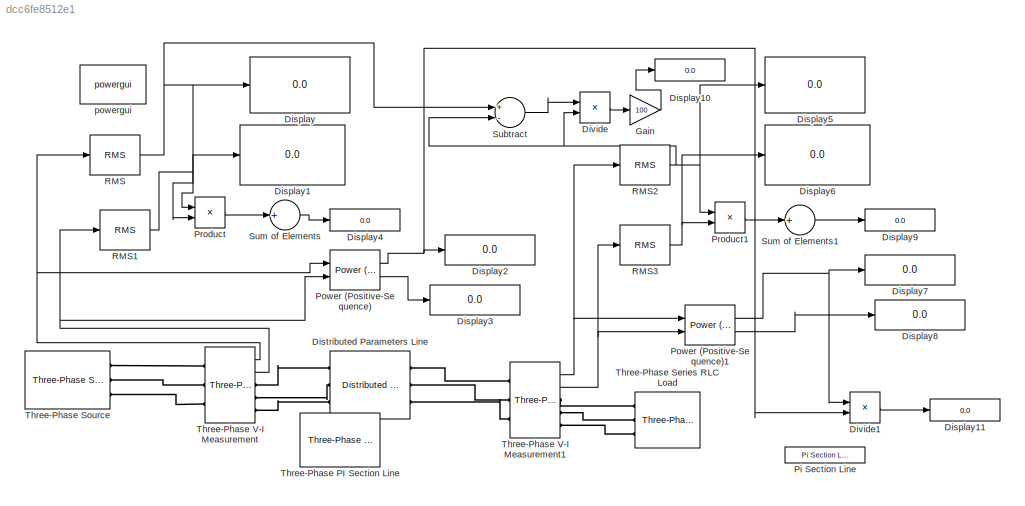
MODEL slx_dcc6fe8512e1
KIND model
BLOCK [Display] Display
  Decimation = 1
  Ports = [1]
BLOCK [Display] Display1
  Decimation = 1
  Ports = [1]
BLOCK [Display] Display10
  Decimation = 1
  Ports = [1]
BLOCK [Display] Display11
  Decimation = 1
  Ports = [1]
BLOCK [Display] Display2
  Decimation = 1
  Ports = [1]
BLOCK [Display] Display3
  Decimation = 1
  Ports = [1]
BLOCK [Display] Display4
  Decimation = 1
  Ports = [1]
BLOCK [Display] Display5
  Decimation = 1
  Ports = [1]
BLOCK [Display] Display6
  Decimation = 1
  Ports = [1]
BLOCK [Display] Display7
  Decimation = 1
  Ports = [1]
BLOCK [Display] Display8
  Decimation = 1
  Ports = [1]
BLOCK [Display] Display9
  Decimation = 1
  Ports = [1]
BLOCK [Reference] Distributed Parameters Line  REF=powerlib/Elements/Distributed Parameters Line
  Capacitance = [11.94e-9 11.9e-9]
  Frequency = 60
  I1 = [2.357e-13 1213 1213;377 377 377;3.024 1.196 -0.3746]
  I2 = [4.547e-13 3571 3571;377 377 377;2.757 -0.2055 -1.776]
  Inductance = [0.97e-3  0.97e-3]
  Length = 300
  Measurements = None
  Phases = 3
  Ports = [0, 0, 0, 0, 0, 3, 3]
  Resistance = [0 0]
  SourceBlock = powerlib/Elements/Distributed Parameters Line
  SourceType = Distributed Parameters Line
  V1 = [5.821e-11 6.175e+05 6.175e+05;377 377 377;1.187 0.4197 -1.151]
  V2 = [9.318e-11 5.012e+05 5.012e+05;377 377 377;0.2905 0.1381 -1.433]
  nHarmo = 1
  x1 = [0 0 0 0; 0.0001244 0 0 0; 0.0002488 0 0 0; 0.0003733 0 0 0; 0.0004977 0 0 0; 0.0006221 0 0 0]
  x2 = [0 0 0 0; 0.0001244 0 0 0; 0.0002488 0 0 0; 0.0003733 0 0 0; 0.0004977 0 0 0; 0.0006221 0 0 0]
  x3 = [0 0 0 0; 0.0001244 0 0 0; 0.0002488 0 0 0; 0.0003733 0 0 0; 0.0004977 0 0 0; 0.0006221 0 0 0]
  x4 = [0 0 0 0; 0.0001244 0 0 0; 0.0002488 0 0 0; 0.0003733 0 0 0; 0.0004977 0 0 0; 0.0006221 0 0 0]
  x5 = 0
BLOCK [Product] Divide
  InputSameDT = off
  Inputs = */
  OutDataTypeStr = Inherit: Inherit via internal rule
  Ports = [2, 1]
  RndMeth = Floor
  SaturateOnIntegerOverflow = off
BLOCK [Product] Divide1
  InputSameDT = off
  Inputs = */
  OutDataTypeStr = Inherit: Inherit via internal rule
  Ports = [2, 1]
  RndMeth = Floor
  SaturateOnIntegerOverflow = off
BLOCK [Gain] Gain
  Gain = 100
  OutDataTypeStr = Inherit: Inherit via internal rule
  ParamDataTypeStr = Inherit: Inherit via internal rule
  SampleTime = 0
  SaturateOnIntegerOverflow = off
BLOCK [Reference] Pi Section Line  REF=powerlib/Elements/Pi Section Line
  AttributesFormatString = \n
  Capacitance = 12.74e-9
  Frequency = 60
  Inductance = 0.9337e-3
  LConnTagsString = __new0
  Length = 100
  Measurements = None
  PiSections = 1
  Ports = [0, 0, 0, 0, 0, 1, 1]
  RConnTagsString = __new0
  Resistance = 0.01273
  SourceBlock = powerlib/Elements/Pi Section Line
  SourceType = Pi Section Line
BLOCK [Reference] Power (Positive-Sequence)  REF=powerlib_meascontrol/Measurements/Power
(Positive-Sequence)
  Freq = 60
  Iinit = [0, 0]
  Ports = [2, 2]
  SourceBlock = powerlib_meascontrol/Measurements/Power\n(Positive-Sequence)
  SourceType = Power (Positive-Sequence)
  Ts = 0
  Vinit = [0, 0]
BLOCK [Reference] Power (Positive-Sequence)1  REF=powerlib_meascontrol/Measurements/Power
(Positive-Sequence)
  Freq = 60
  Iinit = [0, 0]
  Ports = [2, 2]
  SourceBlock = powerlib_meascontrol/Measurements/Power\n(Positive-Sequence)
  SourceType = Power (Positive-Sequence)
  Ts = 0
  Vinit = [0, 0]
BLOCK [Product] Product
  InputSameDT = off
  OutDataTypeStr = Inherit: Inherit via internal rule
  Ports = [2, 1]
  RndMeth = Floor
  SaturateOnIntegerOverflow = off
BLOCK [Product] Product1
  InputSameDT = off
  OutDataTypeStr = Inherit: Inherit via internal rule
  Ports = [2, 1]
  RndMeth = Floor
  SaturateOnIntegerOverflow = off
BLOCK [Reference] RMS  REF=powerlib_meascontrol/Measurements/RMS
  Freq = 60
  Ports = [1, 1]
  RMSInit = 120
  SourceBlock = powerlib_meascontrol/Measurements/RMS
  SourceType = RMS
  TrueRMS = on
  Ts = 0
BLOCK [Reference] RMS1  REF=powerlib_meascontrol/Measurements/RMS
  Freq = 60
  Ports = [1, 1]
  RMSInit = 120
  SourceBlock = powerlib_meascontrol/Measurements/RMS
  SourceType = RMS
  TrueRMS = on
  Ts = 0
BLOCK [Reference] RMS2  REF=powerlib_meascontrol/Measurements/RMS
  Freq = 60
  Ports = [1, 1]
  RMSInit = 120
  SourceBlock = powerlib_meascontrol/Measurements/RMS
  SourceType = RMS
  TrueRMS = on
  Ts = 0
BLOCK [Reference] RMS3  REF=powerlib_meascontrol/Measurements/RMS
  Freq = 60
  Ports = [1, 1]
  RMSInit = 120
  SourceBlock = powerlib_meascontrol/Measurements/RMS
  SourceType = RMS
  TrueRMS = on
  Ts = 0
BLOCK [Sum] Subtract
  InputSameDT = off
  Inputs = +-
  OutDataTypeStr = Inherit: Inherit via internal rule
  Ports = [2, 1]
  SaturateOnIntegerOverflow = off
BLOCK [Sum] Sum of Elements
  IconShape = round
  InputSameDT = off
  Inputs = +
  OutDataTypeStr = Inherit: Inherit via internal rule
  Ports = [1, 1]
  SaturateOnIntegerOverflow = off
BLOCK [Sum] Sum of Elements1
  IconShape = round
  InputSameDT = off
  Inputs = +
  OutDataTypeStr = Inherit: Inherit via internal rule
  Ports = [1, 1]
  SaturateOnIntegerOverflow = off
BLOCK [Reference] Three-Phase PI Section Line  REF=powerlib/Elements/Three-Phase
PI Section Line
  AttributesFormatString = \n
  Capacitances = [12.74e-9 7.751e-9]
  Frequency = 60
  Inductances = [ 0.9337e-3  4.1264e-3]
  LConnTagsString = a|b|c
  Length = 100
  Ports = [0, 0, 0, 0, 0, 3, 3]
  RConnTagsString = A|B|C
  Resistances = [ 0.01273 0.3864]
  SourceBlock = powerlib/Elements/Three-Phase\nPI Section Line
  SourceType = Three-Phase PI Section Line
BLOCK [Reference] Three-Phase Series RLC Load  REF=powerlib/Elements/Three-Phase
Series RLC Load
  ActivePower = 800e6
  AttributesFormatString = \n
  CapacitivePower = 0
  Configuration = Y (grounded)
  InductivePower = 600e6
  LConnTagsString = A|B|C
  LoadType = constant Z
  Measurements = None
  NominalFrequency = 60
  NominalVoltage = 500e3
  Ports = [0, 0, 0, 0, 0, 3]
  SourceBlock = powerlib/Elements/Three-Phase\nSeries RLC Load
  SourceType = Three-Phase Series RLC Load
BLOCK [Reference] Three-Phase Source  REF=powerlib/Electrical
Sources/Three-Phase Source
  BaseVoltage = 0
  BusType = swing
  Frequency = 60
  Inductance = 0
  InternalConnection = Yg
  PhaseAngle = 16.1
  Ports = [0, 0, 0, 0, 0, 0, 3]
  Pref = 0
  Qmax = inf
  Qmin = -inf
  Qref = 0
  Resistance = 0
  ShortCircuitLevel = 100e6
  SourceBlock = powerlib/Electrical\nSources/Three-Phase Source
  SourceType = Three-Phase Source
  SpecifyImpedance = off
  Voltage = 617.53e3
  XRratio = 7
BLOCK [Reference] Three-Phase V-I Measurement  REF=powerlib/Measurements/Three-Phase
V-I Measurement
  CurrentMeasurement = yes
  Ipu = off
  LabelI = Iabc
  LabelV = Vabc
  OutputType = Complex
  PSBequivalent = 0
  Pbase = 100e6
  PhasorSimulation = off
  Ports = [0, 2, 0, 0, 0, 3, 3]
  SetLabelI = off
  SetLabelV = off
  SourceBlock = powerlib/Measurements/Three-Phase\nV-I Measurement
  SourceType = Three-Phase VI Measurement
  Vbase = 500e3
  VoltageMeasurement = phase-to-ground
  Vpu = off
  VpuLL = off
BLOCK [Reference] Three-Phase V-I Measurement1  REF=powerlib/Measurements/Three-Phase
V-I Measurement
  CurrentMeasurement = yes
  Ipu = off
  LabelI = Iabc
  LabelV = Vabc
  OutputType = Complex
  PSBequivalent = 0
  Pbase = 100e6
  PhasorSimulation = off
  Ports = [0, 2, 0, 0, 0, 3, 3]
  SetLabelI = off
  SetLabelV = off
  SourceBlock = powerlib/Measurements/Three-Phase\nV-I Measurement
  SourceType = Three-Phase VI Measurement
  Vbase = 500e3
  VoltageMeasurement = phase-to-ground
  Vpu = off
  VpuLL = off
BLOCK [Reference] powergui  REF=powerlib/powergui
  DisableRonSwitches = off
  DisableSnubberDevices = off
  DisableVfSwitches = off
  DisplayEquations = off
  DisplayStyle = 1
  EnableUseOfTLC = off
  ErrMax = 1e-4
  Frange = [0:2:500]
  FreqAxis = off
  FunctionMessages = off
  HookPort = off
  Interpol = off
  Iterations = 50
  MaxFrequency = 1000
  Pbase = 100e6
  Ports = []
  Priority = 1
  ResistiveCurrentMeasurement = off
  RestoreLinks = warning
  RmsSteady = 1
  SPID = off
  SampleTime = 50e-6
  ShowGrid = off
  SolverType = Tustin
  SourceBlock = powerlib/powergui
  SourceType = PSB option menu block
  StartTime = 0.0
  SwTol = 0
  Ts = 0
  UnitsV = kV
  UnitsW = MW
  UserDataPersistent = on
  Xlog = on
  Ylog = off
  ZoomFFT = off
  cycles = 1
  display = off
  echomessages = off
  frequency = 60
  frequencyindice = 60
  frequencyindicesteady = 1
  fundamental = 60
  methode = off
  save = off
  structure = 0
  variable = ZData
  x0status = blocks
LINE Divide1:1 -> Display11:1
LINE Divide:1 -> Gain:1
LINE Gain:1 -> Display10:1
NET Power (Positive-Sequence)1:1 -> Display7:1, Divide1:1
LINE Power (Positive-Sequence)1:2 -> Display8:1
NET Power (Positive-Sequence):1 -> Display2:1, Divide1:2
LINE Power (Positive-Sequence):2 -> Display3:1
LINE Product1:1 -> Sum of Elements1:1
LINE Product:1 -> Sum of Elements:1
NET RMS1:1 -> Display1:1, Product:2
NET RMS2:1 -> Display5:1, Divide:2, Product1:1, Subtract:2
NET RMS3:1 -> Display6:1, Product1:2
NET RMS:1 -> Display:1, Product:1, Subtract:1
LINE Subtract:1 -> Divide:1
LINE Sum of Elements1:1 -> Display9:1
LINE Sum of Elements:1 -> Display4:1
NET Three-Phase V-I Measurement1:1 -> Power (Positive-Sequence)1:1, RMS2:1
NET Three-Phase V-I Measurement1:2 -> Power (Positive-Sequence)1:2, RMS3:1
NET Three-Phase V-I Measurement:1 -> Power (Positive-Sequence):1, RMS:1
NET Three-Phase V-I Measurement:2 -> Power (Positive-Sequence):2, RMS1:1
PLINE Distributed Parameters Line:LConn1 -- Three-Phase V-I Measurement:RConn1
PLINE Distributed Parameters Line:LConn2 -- Three-Phase V-I Measurement:RConn2
PLINE Distributed Parameters Line:LConn3 -- Three-Phase V-I Measurement:RConn3
PLINE Distributed Parameters Line:RConn1 -- Three-Phase V-I Measurement1:LConn1
PLINE Distributed Parameters Line:RConn2 -- Three-Phase V-I Measurement1:LConn2
PLINE Distributed Parameters Line:RConn3 -- Three-Phase V-I Measurement1:LConn3
PLINE Three-Phase Series RLC Load:LConn1 -- Three-Phase V-I Measurement1:RConn1
PLINE Three-Phase Series RLC Load:LConn2 -- Three-Phase V-I Measurement1:RConn2
PLINE Three-Phase Series RLC Load:LConn3 -- Three-Phase V-I Measurement1:RConn3
PLINE Three-Phase Source:RConn1 -- Three-Phase V-I Measurement:LConn1
PLINE Three-Phase Source:RConn2 -- Three-Phase V-I Measurement:LConn2
PLINE Three-Phase Source:RConn3 -- Three-Phase V-I Measurement:LConn3
note: NET lines group one-source signal fan-out (src -> all destinations, sorted); 1:1 wires keep LINE
